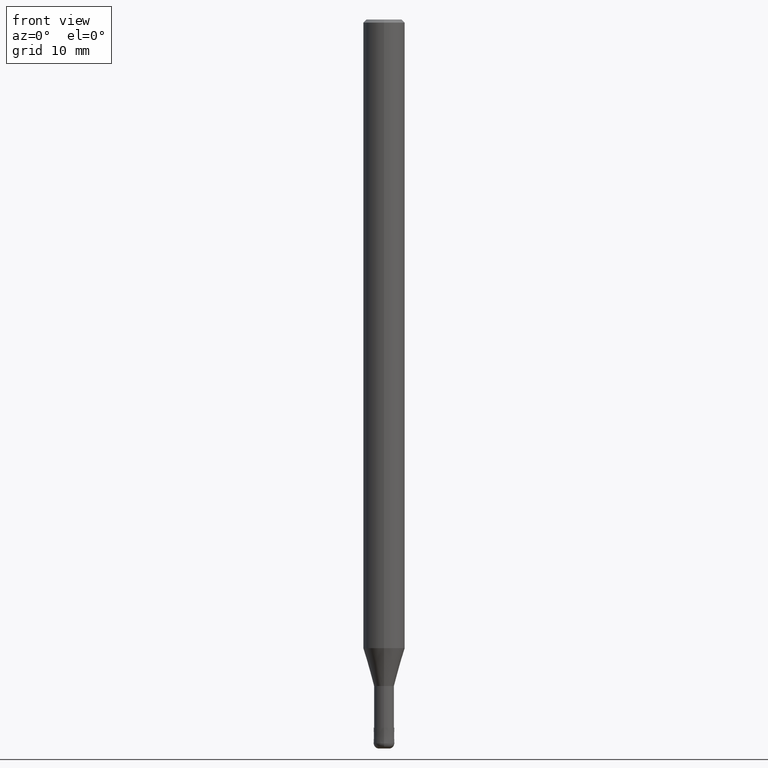
[diagram: clean part render]
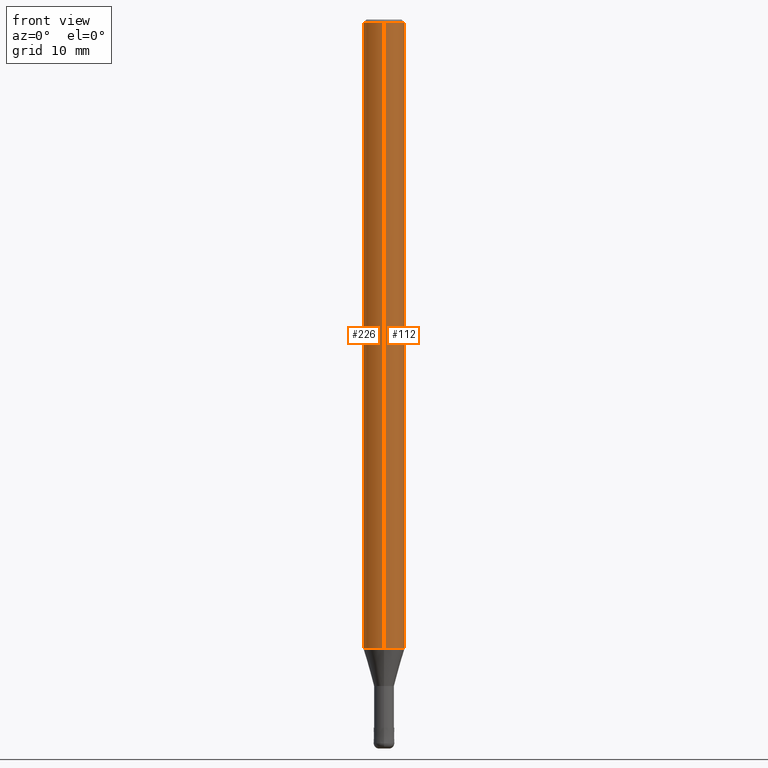
[diagram: same view with one multi-face feature highlighted, each face labeled with its STEP entity id]
A machine part, front view. The highlighted faces form ONE feature: a constant-radius fillet chain: 2 tangent blend faces with common blend radius 2 mm. The faces share edges in the B-rep.
Their STEP definitions:
[1] entity #226 (Cylinder):
#106=VERTEX_POINT('',#259);
#114=EDGE_CURVE('',#170,#106,#269,.T.);
#156=EDGE_CURVE('',#186,#106,#316,.T.);
#170=VERTEX_POINT('',#334);
#178=VERTEX_POINT('',#342);
#182=EDGE_CURVE('',#186,#178,#346,.T.);
#186=VERTEX_POINT('',#351);
#196=EDGE_CURVE('',#178,#170,#361,.T.);
#226=ADVANCED_FACE('',(#394),#395,.T.);
#259=CARTESIAN_POINT('',(0.0,2.0,-60.356));
#269=LINE('',#434,#435);
#316=CIRCLE('',#493,2.0);
#334=CARTESIAN_POINT('',(0.0,2.0,-0.299999999999997));
#342=CARTESIAN_POINT('',(2.44921270764475E-016,-2.0,-0.299999999999997));
#346=LINE('',#529,#530);
#351=CARTESIAN_POINT('',(2.44921270764475E-016,-2.0,-60.356));
#361=CIRCLE('',#550,2.0);
#394=FACE_OUTER_BOUND('',#594,.T.);
#395=CYLINDRICAL_SURFACE('',#595,2.0);
#434=CARTESIAN_POINT('',(-2.44921270764475E-016,2.0,-30.328));
#435=VECTOR('',#629,1.0);
#493=AXIS2_PLACEMENT_3D('',#687,#688,#689);
#529=CARTESIAN_POINT('',(2.44921270764475E-016,-2.0,-30.328));
#530=VECTOR('',#722,1.0);
#550=AXIS2_PLACEMENT_3D('',#738,#739,#740);
#594=EDGE_LOOP('',(#780,#781,#782,#783));
#595=AXIS2_PLACEMENT_3D('',#784,#785,#786);
#629=DIRECTION('',(0.0,0.0,-1.0));
#687=CARTESIAN_POINT('',(0.0,0.0,-60.356));
#688=DIRECTION('',(0.0,0.0,-1.0));
#689=DIRECTION('',(0.0,1.0,0.0));
#722=DIRECTION('',(-0.0,-0.0,1.0));
#738=CARTESIAN_POINT('',(0.0,0.0,-0.299999999999997));
#739=DIRECTION('',(0.0,0.0,-1.0));
#740=DIRECTION('',(0.0,1.0,0.0));
#780=ORIENTED_EDGE('',*,*,#114,.T.);
#781=ORIENTED_EDGE('',*,*,#156,.F.);
#782=ORIENTED_EDGE('',*,*,#182,.T.);
#783=ORIENTED_EDGE('',*,*,#196,.T.);
#784=CARTESIAN_POINT('',(0.0,0.0,-30.328));
#785=DIRECTION('',(-0.0,-0.0,1.0));
#786=DIRECTION('',(0.0,1.0,0.0));
[2] entity #112 (Cylinder):
#106=VERTEX_POINT('',#259);
#112=ADVANCED_FACE('',(#266),#267,.T.);
#114=EDGE_CURVE('',#170,#106,#269,.T.);
#170=VERTEX_POINT('',#334);
#178=VERTEX_POINT('',#342);
#182=EDGE_CURVE('',#186,#178,#346,.T.);
#186=VERTEX_POINT('',#351);
#190=EDGE_CURVE('',#170,#178,#355,.T.);
#192=EDGE_CURVE('',#106,#186,#357,.T.);
#259=CARTESIAN_POINT('',(0.0,2.0,-60.356));
#266=FACE_OUTER_BOUND('',#430,.T.);
#267=CYLINDRICAL_SURFACE('',#431,2.0);
#269=LINE('',#434,#435);
#334=CARTESIAN_POINT('',(0.0,2.0,-0.299999999999997));
#342=CARTESIAN_POINT('',(2.44921270764475E-016,-2.0,-0.299999999999997));
#346=LINE('',#529,#530);
#351=CARTESIAN_POINT('',(2.44921270764475E-016,-2.0,-60.356));
#355=CIRCLE('',#540,2.0);
#357=CIRCLE('',#543,2.0);
#430=EDGE_LOOP('',(#622,#623,#624,#625));
#431=AXIS2_PLACEMENT_3D('',#626,#627,#628);
#434=CARTESIAN_POINT('',(-2.44921270764475E-016,2.0,-30.328));
#435=VECTOR('',#629,1.0);
#529=CARTESIAN_POINT('',(2.44921270764475E-016,-2.0,-30.328));
#530=VECTOR('',#722,1.0);
#540=AXIS2_PLACEMENT_3D('',#731,#732,#733);
#543=AXIS2_PLACEMENT_3D('',#734,#735,#736);
#622=ORIENTED_EDGE('',*,*,#114,.F.);
#623=ORIENTED_EDGE('',*,*,#190,.T.);
#624=ORIENTED_EDGE('',*,*,#182,.F.);
#625=ORIENTED_EDGE('',*,*,#192,.F.);
#626=CARTESIAN_POINT('',(0.0,0.0,-30.328));
#627=DIRECTION('',(-0.0,-0.0,1.0));
#628=DIRECTION('',(0.0,1.0,0.0));
#629=DIRECTION('',(0.0,0.0,-1.0));
#722=DIRECTION('',(-0.0,-0.0,1.0));
#731=CARTESIAN_POINT('',(0.0,0.0,-0.299999999999997));
#732=DIRECTION('',(0.0,0.0,-1.0));
#733=DIRECTION('',(0.0,1.0,0.0));
#734=CARTESIAN_POINT('',(0.0,0.0,-60.356));
#735=DIRECTION('',(0.0,0.0,-1.0));
#736=DIRECTION('',(0.0,1.0,0.0));